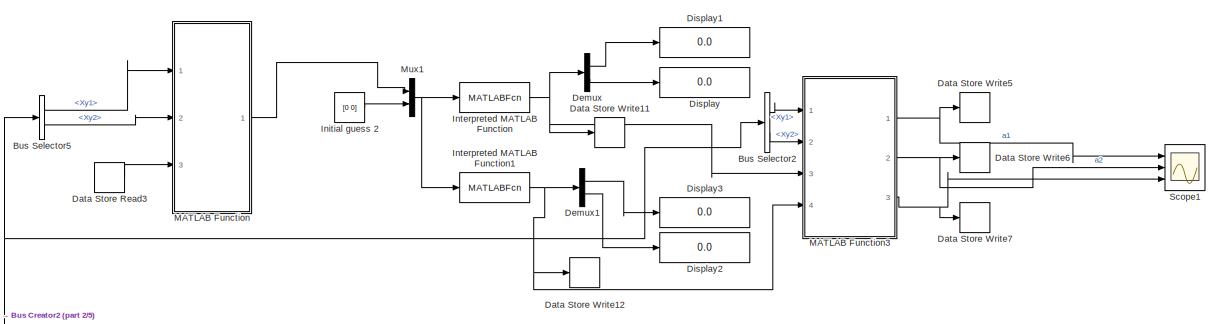
[diagram: root canvas - part 1/5, top center region]
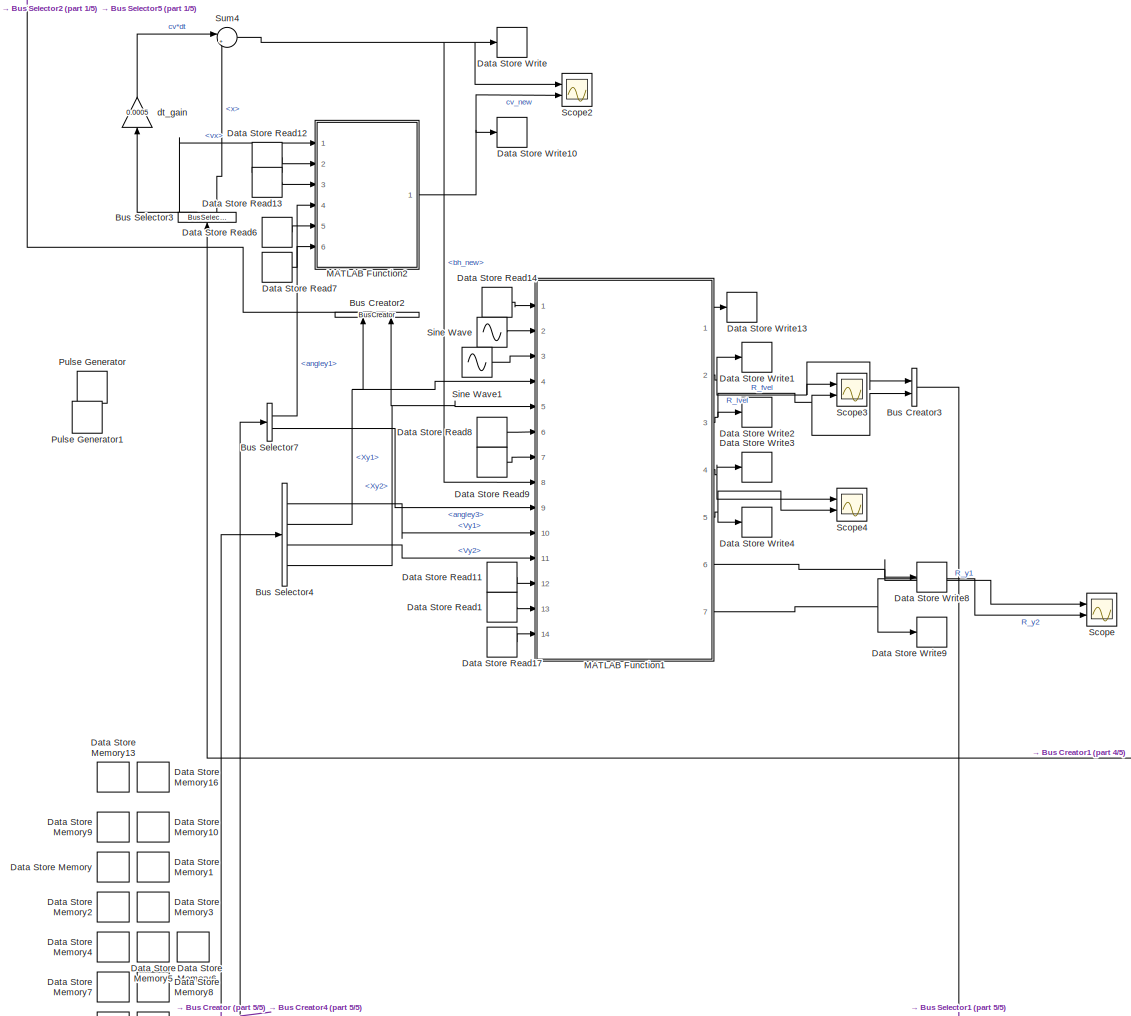
[diagram: root canvas - part 2/5, central region]
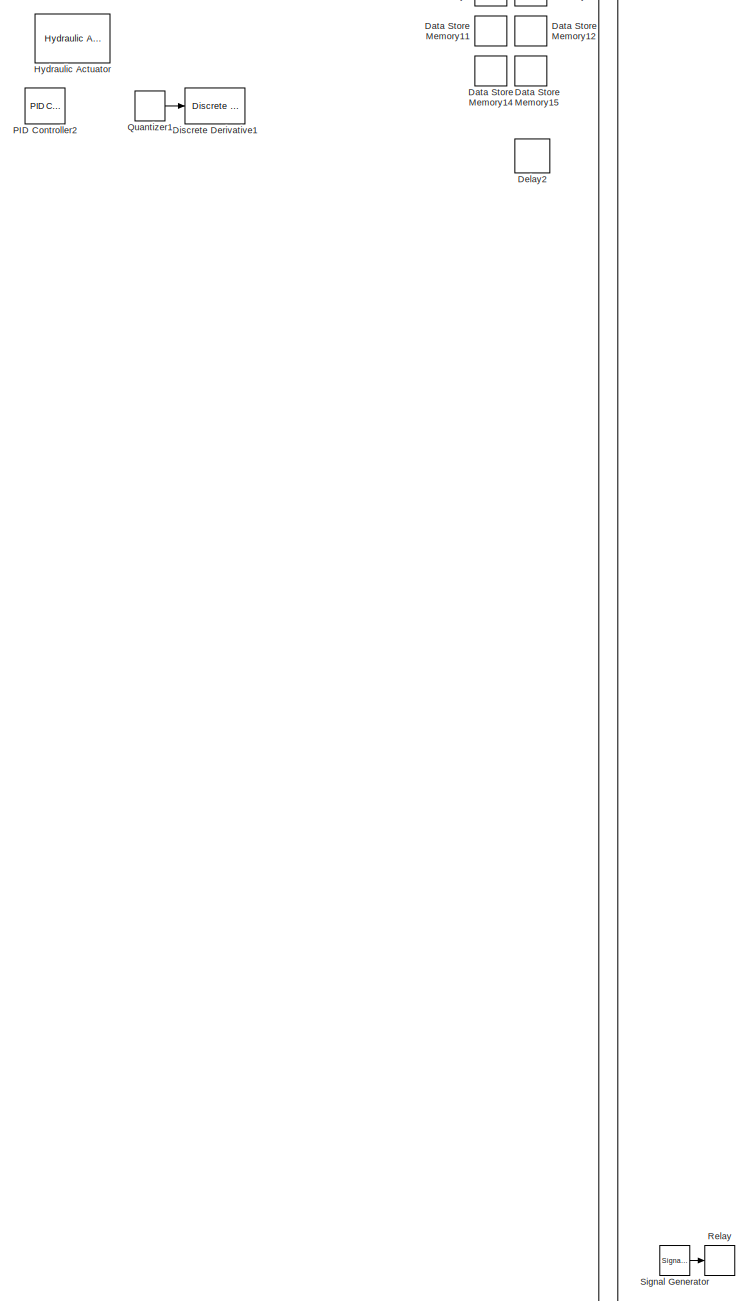
[diagram: root canvas - part 3/5, bottom left region]
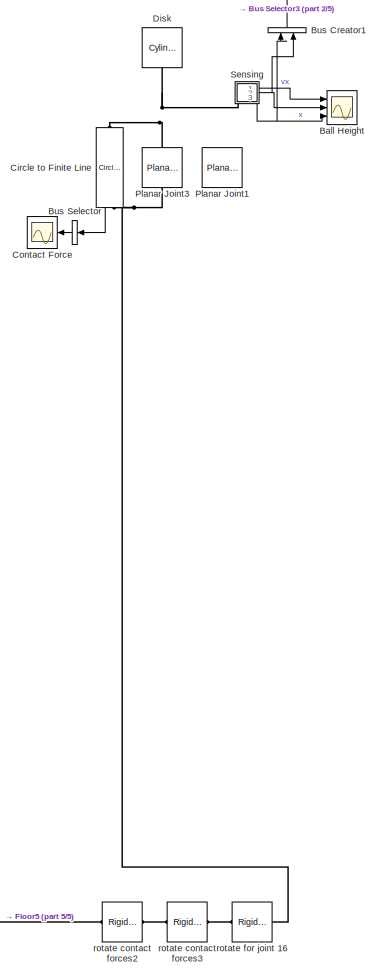
[diagram: root canvas - part 4/5, bottom right region]
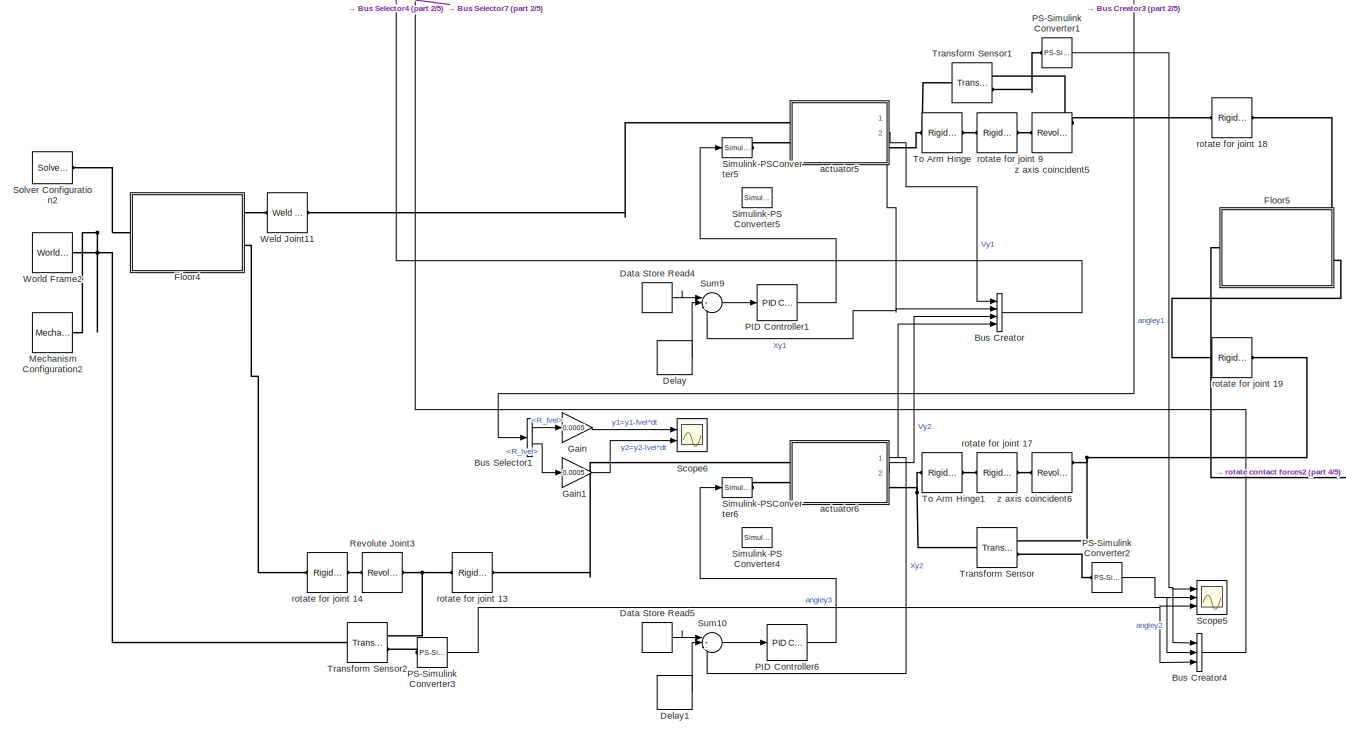
[diagram: root canvas - part 5/5, bottom center region]
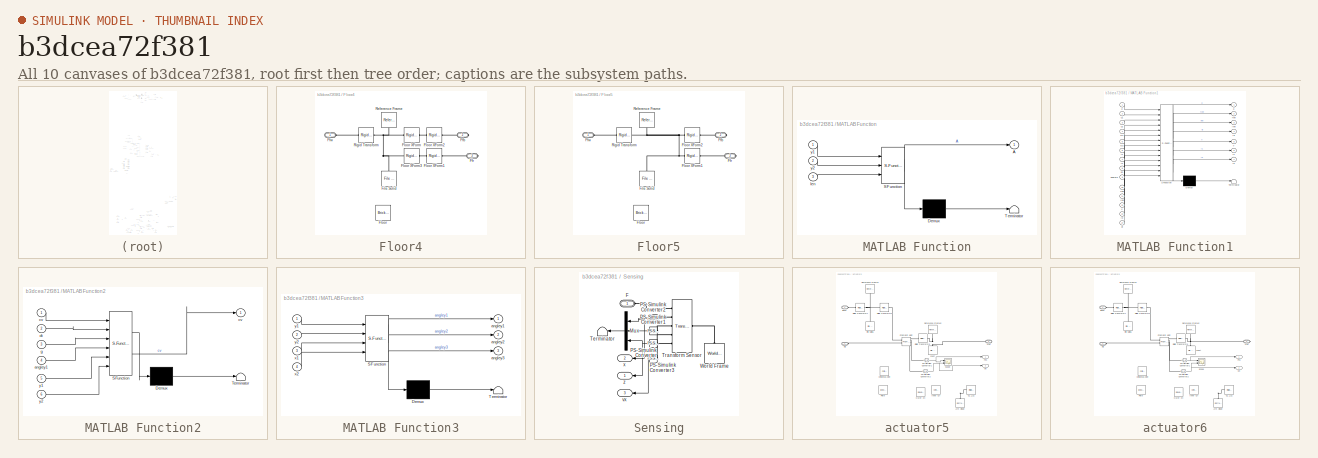
[diagram: thumbnail index - all 10 canvases of the model, root first then tree order]
MODEL slx_b3dcea72f381
KIND model
CONFIG AbsTol = auto
CONFIG EnableMultiTasking = off
CONFIG FixedStep = auto
CONFIG MaxStep = auto
CONFIG MinStep = auto
CONFIG RelTol = 1e-3
CONFIG SampleTimeConstraint = Unconstrained
CONFIG SolverName = VariableStepAuto
CONFIG StartTime = 0.0
CONFIG StopTime = 10.0
BLOCK [Scope] Ball Height
  Floating = off
  NumInputPorts = 3
  Ports = [3]
  ScopeSpecificationString = Simulink.scopes.TimeScopeBlockCfg('CurrentConfiguration', extmgr.ConfigurationSet(extmgr.Configuration('Core','General UI',true,'FigureColor',[0.501960784313725 0.501960784313725 0.501960784313725]),extmgr.Configuration('Core','Source UI',true),extmgr.Configuration('Sources','WiredSimulink',true,'DataLoggingSaveFormat','StructureWithTime','DataLoggingDecimation','1','DataLoggingVariableName','Scop...<+2727ch>
BLOCK [BusCreator] Bus Creator
  DisplayOption = bar
  InheritFromInputs = on
  Inputs = 4
  Ports = [4, 1]
BLOCK [BusCreator] Bus Creator1
  DisplayOption = bar
  InheritFromInputs = on
  Inputs = 2
  NameLocation = right
  Ports = [2, 1]
BLOCK [BusCreator] Bus Creator2
  DisplayOption = bar
  InheritFromInputs = on
  Inputs = 2
  NameLocation = right
  Ports = [2, 1]
BLOCK [BusCreator] Bus Creator3
  DisplayOption = bar
  InheritFromInputs = on
  Inputs = 2
  Ports = [2, 1]
BLOCK [BusCreator] Bus Creator4
  DisplayOption = bar
  InheritFromInputs = on
  Inputs = 3
  Ports = [3, 1]
BLOCK [BusSelector] Bus Selector
  NameLocation = top
  OutputAsBus = on
  OutputSignals = Normal Force
  Ports = [1, 1]
BLOCK [BusSelector] Bus Selector1
  OutputSignals = R_fvel,R_lvel
  Ports = [1, 2]
BLOCK [BusSelector] Bus Selector2
  Commented = on
  OutputSignals = Xy1,Xy2
  Ports = [1, 2]
BLOCK [BusSelector] Bus Selector3
  NameLocation = right
  OutputSignals = vx,x
  Ports = [1, 2]
BLOCK [BusSelector] Bus Selector4
  OutputSignals = Vy1,Xy1,Vy2,Xy2
  Ports = [1, 4]
BLOCK [BusSelector] Bus Selector5
  Commented = on
  OutputSignals = Xy1,Xy2
  Ports = [1, 2]
BLOCK [BusSelector] Bus Selector7
  OutputSignals = angley1,angley3
  Ports = [1, 2]
BLOCK [Reference] Circle to Finite Line  REF=Contact_Forces_Lib/2D/Circle to Finite Line Force
  NameLocation = left
  Ports = [0, 1, 0, 0, 0, 1, 1]
  SourceBlock = Contact_Forces_Lib/2D/Circle to Finite Line Force
  SourceProductName = Simscape Multibody Contact Forces Library
  SourceType = Circle on Finite Line Force
BLOCK [Scope] Contact Force
  Floating = off
  NumInputPorts = 1
  Ports = [1]
  ScopeSpecificationString = Simulink.scopes.TimeScopeBlockCfg('CurrentConfiguration', extmgr.ConfigurationSet(extmgr.Configuration('Core','General UI',true,'FigureColor',[0.501960784313725 0.501960784313725 0.501960784313725]),extmgr.Configuration('Core','Source UI',true),extmgr.Configuration('Sources','WiredSimulink',true,'DataLoggingSaveFormat','StructureWithTime','DataLoggingDecimation','1','DataLoggingDecimateData',true,...<+2643ch>
BLOCK [DataStoreMemory] Data Store Memory
  DataStoreName = bh
  ReadBeforeWriteMsg = warning
  ShowAdditionalParam = off
  WriteAfterReadMsg = warning
  WriteAfterWriteMsg = warning
BLOCK [DataStoreMemory] Data Store Memory1
  DataStoreName = cv
  ReadBeforeWriteMsg = warning
  ShowAdditionalParam = off
  WriteAfterReadMsg = warning
  WriteAfterWriteMsg = warning
BLOCK [DataStoreMemory] Data Store Memory10
  DataStoreName = len
  InitialValue = 2.5
  ReadBeforeWriteMsg = warning
  ShowAdditionalParam = off
  WriteAfterReadMsg = warning
  WriteAfterWriteMsg = warning
BLOCK [DataStoreMemory] Data Store Memory11
  DataStoreName = ld
  ReadBeforeWriteMsg = warning
  ShowAdditionalParam = off
  WriteAfterReadMsg = warning
  WriteAfterWriteMsg = warning
BLOCK [DataStoreMemory] Data Store Memory12
  DataStoreName = v
  ReadBeforeWriteMsg = warning
  ShowAdditionalParam = off
  WriteAfterReadMsg = warning
  WriteAfterWriteMsg = warning
BLOCK [DataStoreMemory] Data Store Memory13
  DataStoreName = g
  InitialValue = 9.8
  ReadBeforeWriteMsg = warning
  ShowAdditionalParam = off
  WriteAfterReadMsg = warning
  WriteAfterWriteMsg = warning
BLOCK [DataStoreMemory] Data Store Memory14
  DataStoreName = x1
  InitialValue = [0 0]
  ReadBeforeWriteMsg = warning
  ShowAdditionalParam = off
  WriteAfterReadMsg = warning
  WriteAfterWriteMsg = warning
BLOCK [DataStoreMemory] Data Store Memory15
  DataStoreName = x2
  InitialValue = [0 0]
  ReadBeforeWriteMsg = warning
  ShowAdditionalParam = off
  WriteAfterReadMsg = warning
  WriteAfterWriteMsg = warning
BLOCK [DataStoreMemory] Data Store Memory16
  DataStoreName = a
  ReadBeforeWriteMsg = warning
  ShowAdditionalParam = off
  WriteAfterReadMsg = warning
  WriteAfterWriteMsg = warning
BLOCK [DataStoreMemory] Data Store Memory2
  DataStoreName = y1
  ReadBeforeWriteMsg = warning
  ShowAdditionalParam = off
  WriteAfterReadMsg = warning
  WriteAfterWriteMsg = warning
BLOCK [DataStoreMemory] Data Store Memory3
  DataStoreName = y2
  ReadBeforeWriteMsg = warning
  ShowAdditionalParam = off
  WriteAfterReadMsg = warning
  WriteAfterWriteMsg = warning
BLOCK [DataStoreMemory] Data Store Memory4
  DataStoreName = angley1
  ReadBeforeWriteMsg = warning
  ShowAdditionalParam = off
  WriteAfterReadMsg = warning
  WriteAfterWriteMsg = warning
BLOCK [DataStoreMemory] Data Store Memory5
  DataStoreName = angley2
  ReadBeforeWriteMsg = warning
  ShowAdditionalParam = off
  WriteAfterReadMsg = warning
  WriteAfterWriteMsg = warning
BLOCK [DataStoreMemory] Data Store Memory6
  DataStoreName = angley3
  ReadBeforeWriteMsg = warning
  ShowAdditionalParam = off
  WriteAfterReadMsg = warning
  WriteAfterWriteMsg = warning
BLOCK [DataStoreMemory] Data Store Memory7
  DataStoreName = fvel
  ReadBeforeWriteMsg = warning
  ShowAdditionalParam = off
  WriteAfterReadMsg = warning
  WriteAfterWriteMsg = warning
BLOCK [DataStoreMemory] Data Store Memory8
  DataStoreName = lvel
  ReadBeforeWriteMsg = warning
  ShowAdditionalParam = off
  WriteAfterReadMsg = warning
  WriteAfterWriteMsg = warning
BLOCK [DataStoreMemory] Data Store Memory9
  DataStoreName = dt
  InitialValue = 0.0005
  ReadBeforeWriteMsg = warning
  ShowAdditionalParam = off
  WriteAfterReadMsg = warning
  WriteAfterWriteMsg = warning
BLOCK [DataStoreRead] Data Store Read1
  DataStoreName = ld
  IndexOptions = Index vector (dialog)
  Indices = 1
  OutputSizes = 1
  Ports = [0, 1]
BLOCK [DataStoreRead] Data Store Read11
  DataStoreName = v
  IndexOptions = Index vector (dialog)
  Indices = 1
  OutputSizes = 1
  Ports = [0, 1]
BLOCK [DataStoreRead] Data Store Read12
  DataStoreName = dt
  IndexOptions = Index vector (dialog)
  Indices = 1
  OutputSizes = 1
  Ports = [0, 1]
BLOCK [DataStoreRead] Data Store Read13
  DataStoreName = g
  IndexOptions = Index vector (dialog)
  Indices = 1
  OutputSizes = 1
  Ports = [0, 1]
BLOCK [DataStoreRead] Data Store Read14
  DataStoreName = a
  IndexOptions = Index vector (dialog)
  Indices = 1
  OutputSizes = 1
  Ports = [0, 1]
BLOCK [DataStoreRead] Data Store Read17
  DataStoreName = dt
  IndexOptions = Index vector (dialog)
  Indices = 1
  OutputSizes = 1
  Ports = [0, 1]
BLOCK [DataStoreRead] Data Store Read3
  Commented = on
  DataStoreName = len
  IndexOptions = Index vector (dialog)
  Indices = 1
  OutputSizes = 1
  Ports = [0, 1]
BLOCK [DataStoreRead] Data Store Read4
  DataStoreName = y1
  IndexOptions = Index vector (dialog)
  Indices = 1
  OutputSizes = 1
  Ports = [0, 1]
BLOCK [DataStoreRead] Data Store Read5
  DataStoreName = y2
  IndexOptions = Index vector (dialog)
  Indices = 1
  OutputSizes = 1
  Ports = [0, 1]
BLOCK [DataStoreRead] Data Store Read6
  DataStoreName = y1
  IndexOptions = Index vector (dialog)
  Indices = 1
  OutputSizes = 1
  Ports = [0, 1]
BLOCK [DataStoreRead] Data Store Read7
  DataStoreName = y2
  IndexOptions = Index vector (dialog)
  Indices = 1
  OutputSizes = 1
  Ports = [0, 1]
BLOCK [DataStoreRead] Data Store Read8
  DataStoreName = y1
  IndexOptions = Index vector (dialog)
  Indices = 1
  OutputSizes = 1
  Ports = [0, 1]
BLOCK [DataStoreRead] Data Store Read9
  DataStoreName = y2
  IndexOptions = Index vector (dialog)
  Indices = 1
  OutputSizes = 1
  Ports = [0, 1]
BLOCK [DataStoreWrite] Data Store Write
  DataStoreName = bh
  IndexOptions = Index vector (dialog)
  Indices = 1
  OutputSizes = 1
  Ports = [1]
BLOCK [DataStoreWrite] Data Store Write1
  DataStoreName = fvel
  IndexOptions = Index vector (dialog)
  Indices = 1
  OutputSizes = 1
  Ports = [1]
BLOCK [DataStoreWrite] Data Store Write10
  DataStoreName = cv
  IndexOptions = Index vector (dialog)
  Indices = 1
  OutputSizes = 1
  Ports = [1]
BLOCK [DataStoreWrite] Data Store Write11
  Commented = on
  DataStoreName = x1
  IndexOptions = Index vector (dialog)
  Indices = 1
  OutputSizes = 1
  Ports = [1]
BLOCK [DataStoreWrite] Data Store Write12
  Commented = on
  DataStoreName = x2
  IndexOptions = Index vector (dialog)
  Indices = 1
  OutputSizes = 1
  Ports = [1]
BLOCK [DataStoreWrite] Data Store Write13
  DataStoreName = a
  IndexOptions = Index vector (dialog)
  Indices = 1
  OutputSizes = 1
  Ports = [1]
BLOCK [DataStoreWrite] Data Store Write2
  DataStoreName = lvel
  IndexOptions = Index vector (dialog)
  Indices = 1
  OutputSizes = 1
  Ports = [1]
BLOCK [DataStoreWrite] Data Store Write3
  DataStoreName = ld
  IndexOptions = Index vector (dialog)
  Indices = 1
  OutputSizes = 1
  Ports = [1]
BLOCK [DataStoreWrite] Data Store Write4
  DataStoreName = v
  IndexOptions = Index vector (dialog)
  Indices = 1
  OutputSizes = 1
  Ports = [1]
BLOCK [DataStoreWrite] Data Store Write5
  Commented = on
  DataStoreName = angley1
  IndexOptions = Index vector (dialog)
  Indices = 1
  OutputSizes = 1
  Ports = [1]
BLOCK [DataStoreWrite] Data Store Write6
  Commented = on
  DataStoreName = angley2
  IndexOptions = Index vector (dialog)
  Indices = 1
  OutputSizes = 1
  Ports = [1]
BLOCK [DataStoreWrite] Data Store Write7
  Commented = on
  DataStoreName = angley3
  IndexOptions = Index vector (dialog)
  Indices = 1
  OutputSizes = 1
  Ports = [1]
BLOCK [DataStoreWrite] Data Store Write8
  DataStoreName = y1
  IndexOptions = Index vector (dialog)
  Indices = 1
  OutputSizes = 1
  Ports = [1]
BLOCK [DataStoreWrite] Data Store Write9
  DataStoreName = y2
  IndexOptions = Index vector (dialog)
  Indices = 1
  OutputSizes = 1
  Ports = [1]
BLOCK [Delay] Delay
  DelayLength = 1
  InitialCondition = 0
  InputPortMap = u0
  Ports = [1, 1]
BLOCK [Delay] Delay1
  DelayLength = 1
  InitialCondition = 0
  InputPortMap = u0
  Ports = [1, 1]
BLOCK [Delay] Delay2
  DelayLength = 1
  InitialCondition = 0
  InputPortMap = u0
  Ports = [1, 1]
BLOCK [Demux] Demux
  Commented = on
  Outputs = 2
  Ports = [1, 2]
BLOCK [Demux] Demux1
  Commented = on
  Outputs = 2
  Ports = [1, 2]
BLOCK [Reference] Discrete Derivative1  REF=simulink/Discrete/Discrete Derivative
  Commented = on
  Ports = [1, 1]
  SourceBlock = simulink/Discrete/Discrete Derivative
  SourceProductBaseCode = SL
  SourceType = Discrete Derivative
BLOCK [Reference] Disk  REF=Parts_Lib/Cylinder
  NameLocation = right
  Ports = [0, 0, 0, 0, 0, 1]
  SourceBlock = Parts_Lib/Cylinder
  SourceType = Solid Cylinder with Markings
BLOCK [Display] Display
  Commented = on
  Decimation = 1
  Ports = [1]
BLOCK [Display] Display1
  Commented = on
  Decimation = 1
  Ports = [1]
BLOCK [Display] Display2
  Commented = on
  Decimation = 1
  Ports = [1]
BLOCK [Display] Display3
  Commented = on
  Decimation = 1
  Ports = [1]
BLOCK [SubSystem] Floor4
  Ports = [0, 0, 0, 0, 0, 1, 2]
  RequestExecContextInheritance = off
BLOCK [PMIOPort] Floor4/Ffb
  NameLocation = top
  Port = 2
  Side = Right
BLOCK [PMIOPort] Floor4/Ffr
  NameLocation = top
  Port = 3
  Side = Right
BLOCK [PMIOPort] Floor4/Ffw
  NameLocation = top
  Side = Left
BLOCK [Reference] Floor4/File Solid  REF=sm_lib/Body Elements/File Solid
  NameLocation = right
  Ports = [0, 0, 0, 0, 0, 0, 1]
  SourceBlock = sm_lib/Body Elements/File Solid
  SourceProductBaseCode = MS
  SourceType = File Solid
BLOCK [Reference] Floor4/Floor  REF=sm_lib/Body Elements/Brick Solid
  Commented = on
  NameLocation = right
  Ports = [0, 0, 0, 0, 0, 0, 1]
  SourceBlock = sm_lib/Body Elements/Brick Solid
  SourceProductBaseCode = MS
  SourceType = Brick Solid
BLOCK [Reference] Floor4/Floor XForm  REF=sm_lib/Frames and
Transforms/Rigid
Transform
  NameLocation = top
  Ports = [0, 0, 0, 0, 0, 1, 1]
  SourceBlock = sm_lib/Frames and\nTransforms/Rigid\nTransform
  SourceProductBaseCode = MS
  SourceType = Rigid\nTransform
BLOCK [Reference] Floor4/Floor XForm1  REF=sm_lib/Frames and
Transforms/Rigid
Transform
  NameLocation = top
  Ports = [0, 0, 0, 0, 0, 1, 1]
  SourceBlock = sm_lib/Frames and\nTransforms/Rigid\nTransform
  SourceProductBaseCode = MS
  SourceType = Rigid\nTransform
BLOCK [Reference] Floor4/Floor XForm2  REF=sm_lib/Frames and
Transforms/Rigid
Transform
  NameLocation = top
  Ports = [0, 0, 0, 0, 0, 1, 1]
  SourceBlock = sm_lib/Frames and\nTransforms/Rigid\nTransform
  SourceProductBaseCode = MS
  SourceType = Rigid\nTransform
BLOCK [Reference] Floor4/Floor XForm3  REF=sm_lib/Frames and
Transforms/Rigid
Transform
  NameLocation = top
  Ports = [0, 0, 0, 0, 0, 1, 1]
  SourceBlock = sm_lib/Frames and\nTransforms/Rigid\nTransform
  SourceProductBaseCode = MS
  SourceType = Rigid\nTransform
BLOCK [Reference] Floor4/Reference Frame  REF=sm_lib/Frames and
Transforms/Reference
Frame
  NameLocation = left
  Ports = [0, 0, 0, 0, 0, 0, 1]
  SourceBlock = sm_lib/Frames and\nTransforms/Reference\nFrame
  SourceProductBaseCode = MS
  SourceType = Reference\nFrame
BLOCK [Reference] Floor4/Rigid Transform  REF=sm_lib/Frames and
Transforms/Rigid
Transform
  NameLocation = top
  Ports = [0, 0, 0, 0, 0, 1, 1]
  SourceBlock = sm_lib/Frames and\nTransforms/Rigid\nTransform
  SourceProductBaseCode = MS
  SourceType = Rigid\nTransform
BLOCK [SubSystem] Floor5
  Ports = [0, 0, 0, 0, 0, 1, 2]
  RequestExecContextInheritance = off
BLOCK [PMIOPort] Floor5/Ffb
  NameLocation = top
  Port = 2
  Side = Right
BLOCK [PMIOPort] Floor5/Ffr
  NameLocation = top
  Port = 3
  Side = Right
BLOCK [PMIOPort] Floor5/Ffw
  NameLocation = top
  Side = Left
BLOCK [Reference] Floor5/File Solid  REF=sm_lib/Body Elements/File Solid
  NameLocation = right
  Ports = [0, 0, 0, 0, 0, 0, 1]
  SourceBlock = sm_lib/Body Elements/File Solid
  SourceProductBaseCode = MS
  SourceType = File Solid
BLOCK [Reference] Floor5/Floor  REF=sm_lib/Body Elements/Brick Solid
  Commented = on
  NameLocation = right
  Ports = [0, 0, 0, 0, 0, 0, 1]
  SourceBlock = sm_lib/Body Elements/Brick Solid
  SourceProductBaseCode = MS
  SourceType = Brick Solid
BLOCK [Reference] Floor5/Floor XForm1  REF=sm_lib/Frames and
Transforms/Rigid
Transform
  NameLocation = top
  Ports = [0, 0, 0, 0, 0, 1, 1]
  SourceBlock = sm_lib/Frames and\nTransforms/Rigid\nTransform
  SourceProductBaseCode = MS
  SourceType = Rigid\nTransform
BLOCK [Reference] Floor5/Floor XForm2  REF=sm_lib/Frames and
Transforms/Rigid
Transform
  NameLocation = top
  Ports = [0, 0, 0, 0, 0, 1, 1]
  SourceBlock = sm_lib/Frames and\nTransforms/Rigid\nTransform
  SourceProductBaseCode = MS
  SourceType = Rigid\nTransform
BLOCK [Reference] Floor5/Reference Frame  REF=sm_lib/Frames and
Transforms/Reference
Frame
  NameLocation = left
  Ports = [0, 0, 0, 0, 0, 0, 1]
  SourceBlock = sm_lib/Frames and\nTransforms/Reference\nFrame
  SourceProductBaseCode = MS
  SourceType = Reference\nFrame
BLOCK [Reference] Floor5/Rigid Transform  REF=sm_lib/Frames and
Transforms/Rigid
Transform
  NameLocation = top
  Ports = [0, 0, 0, 0, 0, 1, 1]
  SourceBlock = sm_lib/Frames and\nTransforms/Rigid\nTransform
  SourceProductBaseCode = MS
  SourceType = Rigid\nTransform
BLOCK [Gain] Gain
  Gain = 0.0005
BLOCK [Gain] Gain1
  Gain = 0.0005
BLOCK [Reference] Hydraulic Actuator  REF=Multibody_Multiphysics_Lib/Hydraulic/Hydraulic Actuator
  Commented = on
  Ports = [0, 0, 0, 0, 0, 2, 2]
  SourceBlock = Multibody_Multiphysics_Lib/Hydraulic/Hydraulic Actuator
  SourceProductName = Simscape Multibody Multiphysics Library
  SourceType = Double-Acting Hydraulic Cylinder, Kinematic Inputs
BLOCK [Constant] Initial guess 2
  Commented = on
  Value = [0 0]
BLOCK [MATLABFcn] Interpreted MATLAB Function
  Commented = on
  MATLABFcn = fsolve(@(x) paramfunJS(x, u(1),u(2),u(3)), [u(4:5)])
  OutputDimensions = 2
  Ports = [1, 1]
BLOCK [MATLABFcn] Interpreted MATLAB Function1
  Commented = on
  MATLABFcn = fsolve(@(x) paramfunJS2(x, u(1),u(2),u(3)), [u(4:5)])
  OutputDimensions = 2
  Ports = [1, 1]
BLOCK [SubSystem] MATLAB Function
  Commented = on
  ErrorFcn = Stateflow.Translate.translate
  PermitHierarchicalResolution = ExplicitOnly
  Ports = [3, 1]
  RequestExecContextInheritance = off
  SFBlockType = MATLAB Function
  TreatAsAtomicUnit = on
BLOCK [Demux] MATLAB Function/ Demux 
  Outputs = 1
  Ports = [1, 1]
BLOCK [S-Function] MATLAB Function/ SFunction 
  EnableBusSupport = on
  FunctionName = sf_sfun
  PortCounts = [3 2]
  Ports = [3, 2]
  SFcnIsStateOwnerBlock = off
  SFunctionDeploymentMode = off
  Tag = Stateflow S-Function 2
BLOCK [Terminator] MATLAB Function/ Terminator 
BLOCK [Outport] MATLAB Function/A
BLOCK [Inport] MATLAB Function/len
  Port = 3
BLOCK [Inport] MATLAB Function/y1
BLOCK [Inport] MATLAB Function/y2
  Port = 2
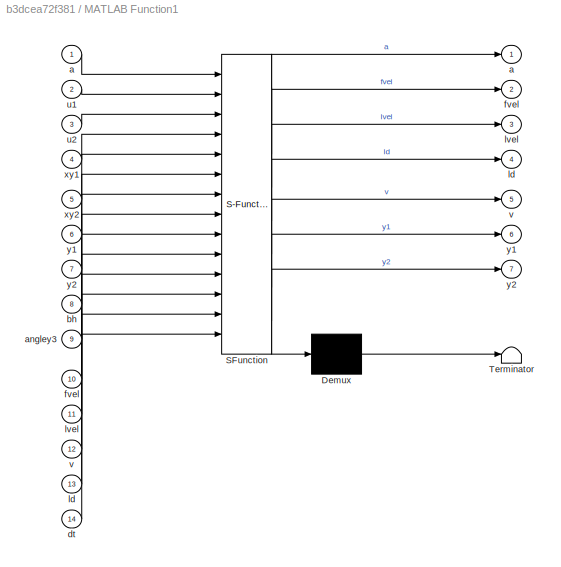
BLOCK [SubSystem] MATLAB Function1
  ErrorFcn = Stateflow.Translate.translate
  PermitHierarchicalResolution = ExplicitOnly
  Ports = [14, 7]
  RequestExecContextInheritance = off
  SFBlockType = MATLAB Function
  TreatAsAtomicUnit = on
BLOCK [Demux] MATLAB Function1/ Demux 
  Outputs = 1
  Ports = [1, 1]
BLOCK [S-Function] MATLAB Function1/ SFunction 
  EnableBusSupport = on
  FunctionName = sf_sfun
  PortCounts = [14 8]
  Ports = [14, 8]
  SFcnIsStateOwnerBlock = off
  SFunctionDeploymentMode = off
  Tag = Stateflow S-Function 1
BLOCK [Terminator] MATLAB Function1/ Terminator 
BLOCK [Outport] MATLAB Function1/a
BLOCK [Inport] MATLAB Function1/a 
BLOCK [Inport] MATLAB Function1/angley3
  Port = 9
BLOCK [Inport] MATLAB Function1/bh
  Port = 8
BLOCK [Inport] MATLAB Function1/dt
  Port = 14
BLOCK [Outport] MATLAB Function1/fvel
  Port = 2
BLOCK [Inport] MATLAB Function1/fvel 
  Port = 10
BLOCK [Outport] MATLAB Function1/ld
  Port = 4
BLOCK [Inport] MATLAB Function1/ld 
  Port = 13
BLOCK [Outport] MATLAB Function1/lvel
  Port = 3
BLOCK [Inport] MATLAB Function1/lvel 
  Port = 11
BLOCK [Inport] MATLAB Function1/u1
  Port = 2
BLOCK [Inport] MATLAB Function1/u2
  Port = 3
BLOCK [Outport] MATLAB Function1/v
  Port = 5
BLOCK [Inport] MATLAB Function1/v 
  Port = 12
BLOCK [Inport] MATLAB Function1/xy1
  Port = 4
BLOCK [Inport] MATLAB Function1/xy2
  Port = 5
BLOCK [Outport] MATLAB Function1/y1
  Port = 6
BLOCK [Inport] MATLAB Function1/y1 
  Port = 6
BLOCK [Outport] MATLAB Function1/y2
  Port = 7
BLOCK [Inport] MATLAB Function1/y2 
  Port = 7
BLOCK [SubSystem] MATLAB Function2
  ErrorFcn = Stateflow.Translate.translate
  PermitHierarchicalResolution = ExplicitOnly
  Ports = [6, 1]
  RequestExecContextInheritance = off
  SFBlockType = MATLAB Function
  TreatAsAtomicUnit = on
BLOCK [Demux] MATLAB Function2/ Demux 
  Outputs = 1
  Ports = [1, 1]
BLOCK [S-Function] MATLAB Function2/ SFunction 
  EnableBusSupport = on
  FunctionName = sf_sfun
  PortCounts = [6 2]
  Ports = [6, 2]
  SFcnIsStateOwnerBlock = off
  SFunctionDeploymentMode = off
  Tag = Stateflow S-Function 3
BLOCK [Terminator] MATLAB Function2/ Terminator 
BLOCK [Inport] MATLAB Function2/angley1
  Port = 4
BLOCK [Outport] MATLAB Function2/cv
BLOCK [Inport] MATLAB Function2/cv 
BLOCK [Inport] MATLAB Function2/dt
  Port = 2
BLOCK [Inport] MATLAB Function2/g
  Port = 3
BLOCK [Inport] MATLAB Function2/y1
  Port = 5
BLOCK [Inport] MATLAB Function2/y2
  Port = 6
BLOCK [SubSystem] MATLAB Function3
  Commented = on
  ErrorFcn = Stateflow.Translate.translate
  PermitHierarchicalResolution = ExplicitOnly
  Ports = [4, 3]
  RequestExecContextInheritance = off
  SFBlockType = MATLAB Function
  TreatAsAtomicUnit = on
BLOCK [Demux] MATLAB Function3/ Demux 
  Outputs = 1
  Ports = [1, 1]
BLOCK [S-Function] MATLAB Function3/ SFunction 
  EnableBusSupport = on
  FunctionName = sf_sfun
  PortCounts = [4 4]
  Ports = [4, 4]
  SFcnIsStateOwnerBlock = off
  SFunctionDeploymentMode = off
  Tag = Stateflow S-Function 4
BLOCK [Terminator] MATLAB Function3/ Terminator 
BLOCK [Outport] MATLAB Function3/angley1
BLOCK [Outport] MATLAB Function3/angley2
  Port = 2
BLOCK [Outport] MATLAB Function3/angley3
  Port = 3
BLOCK [Inport] MATLAB Function3/x1
  Port = 3
BLOCK [Inport] MATLAB Function3/x2
  Port = 4
BLOCK [Inport] MATLAB Function3/y1
BLOCK [Inport] MATLAB Function3/y2
  Port = 2
BLOCK [Reference] Mechanism Configuration2  REF=sm_lib/Utilities/Mechanism
Configuration
  Ports = [0, 0, 0, 0, 0, 0, 1]
  SourceBlock = sm_lib/Utilities/Mechanism\nConfiguration
  SourceProductBaseCode = MS
  SourceType = Mechanism\nConfiguration
BLOCK [Mux] Mux1
  Commented = on
  DisplayOption = bar
  Inputs = 2
  Ports = [2, 1]
BLOCK [Reference] PID Controller1  REF=pid_lib/PID Controller
  Ports = [1, 1]
  SourceBlock = pid_lib/PID Controller
  SourceProductBaseCode = SL
  SourceType = PID 1dof
BLOCK [Reference] PID Controller2  REF=pid_lib/PID Controller
  Commented = on
  Ports = [1, 1]
  SourceBlock = pid_lib/PID Controller
  SourceProductBaseCode = SL
  SourceType = PID 1dof
BLOCK [Reference] PID Controller6  REF=pid_lib/PID Controller
  Ports = [1, 1]
  SourceBlock = pid_lib/PID Controller
  SourceProductBaseCode = SL
  SourceType = PID 1dof
BLOCK [Reference] PS-Simulink Converter1  REF=nesl_utility/PS-Simulink
Converter
  Ports = [0, 1, 0, 0, 0, 1]
  SourceBlock = nesl_utility/PS-Simulink\nConverter
  SourceProductBaseCode = SS
  SourceType = PS-Simulink\nConverter
BLOCK [Reference] PS-Simulink Converter2  REF=nesl_utility/PS-Simulink
Converter
  Ports = [0, 1, 0, 0, 0, 1]
  SourceBlock = nesl_utility/PS-Simulink\nConverter
  SourceProductBaseCode = SS
  SourceType = PS-Simulink\nConverter
BLOCK [Reference] PS-Simulink Converter3  REF=nesl_utility/PS-Simulink
Converter
  Ports = [0, 1, 0, 0, 0, 1]
  SourceBlock = nesl_utility/PS-Simulink\nConverter
  SourceProductBaseCode = SS
  SourceType = PS-Simulink\nConverter
BLOCK [Reference] Planar Joint1  REF=sm_lib/Joints/Planar Joint
  Commented = on
  NameLocation = right
  Ports = [0, 0, 0, 0, 0, 1, 1]
  SourceBlock = sm_lib/Joints/Planar Joint
  SourceProductBaseCode = MS
  SourceType = Planar Joint
BLOCK [Reference] Planar Joint3  REF=sm_lib/Joints/Planar Joint
  NameLocation = right
  Ports = [0, 0, 0, 0, 0, 1, 1]
  SourceBlock = sm_lib/Joints/Planar Joint
  SourceProductBaseCode = MS
  SourceType = Planar Joint
BLOCK [DiscretePulseGenerator] Pulse Generator
  Amplitude = 3
  Period = 10
  Ports = [0, 1]
  PulseType = Time based
  PulseWidth = 5
BLOCK [DiscretePulseGenerator] Pulse Generator1
  Amplitude = -1
  Period = 10
  Ports = [0, 1]
  PulseType = Time based
  PulseWidth = 5
BLOCK [Quantizer] Quantizer1
  Commented = on
  QuantizationInterval = 1e-6
BLOCK [Relay] Relay
BLOCK [Reference] Revolute Joint3  REF=sm_lib/Joints/Revolute Joint
  Ports = [0, 0, 0, 0, 0, 1, 1]
  SourceBlock = sm_lib/Joints/Revolute Joint
  SourceProductBaseCode = MS
  SourceType = Revolute Joint
BLOCK [Scope] Scope
  Floating = off
  NumInputPorts = 2
  Ports = [2]
  ScopeSpecificationString = Simulink.scopes.TimeScopeBlockCfg('CurrentConfiguration', extmgr.ConfigurationSet(extmgr.Configuration('Core','General UI',true),extmgr.Configuration('Core','Source UI',true),extmgr.Configuration('Sources','WiredSimulink',true,'DataLoggingVariableName','ScopeData1'),extmgr.Configuration('Visuals','Time Domain',true,'SerializedDisplays',{struct('MinYLimReal','-1.00000','MaxYLimReal','1.00000','YLab...<+1445ch>
BLOCK [Scope] Scope1
  Commented = on
  Floating = off
  NumInputPorts = 3
  Ports = [3]
  ScopeSpecificationString = Simulink.scopes.TimeScopeBlockCfg('CurrentConfiguration', extmgr.ConfigurationSet(extmgr.Configuration('Core','General UI',true),extmgr.Configuration('Core','Source UI',true),extmgr.Configuration('Sources','WiredSimulink',true,'DataLoggingVariableName','ScopeData2'),extmgr.Configuration('Visuals','Time Domain',true,'SerializedDisplays',{struct('MinYLimReal','-9.21415','MaxYLimReal','4.51293','YLab...<+1432ch>
BLOCK [Scope] Scope2
  Floating = off
  NumInputPorts = 2
  Ports = [2]
  ScopeSpecificationString = Simulink.scopes.TimeScopeBlockCfg('CurrentConfiguration', extmgr.ConfigurationSet(extmgr.Configuration('Core','General UI',true),extmgr.Configuration('Core','Source UI',true),extmgr.Configuration('Sources','WiredSimulink',true,'DataLoggingVariableName','ScopeData3'),extmgr.Configuration('Visuals','Time Domain',true,'SerializedDisplays',{struct('MinYLimReal','-0.0000011','MaxYLimReal','0.0000086','...<+1421ch>
BLOCK [Scope] Scope3
  Floating = off
  NumInputPorts = 2
  Ports = [2]
  ScopeSpecificationString = Simulink.scopes.TimeScopeBlockCfg('CurrentConfiguration', extmgr.ConfigurationSet(extmgr.Configuration('Core','General UI',true),extmgr.Configuration('Core','Source UI',true),extmgr.Configuration('Sources','WiredSimulink',true,'DataLoggingVariableName','ScopeData4'),extmgr.Configuration('Visuals','Time Domain',true,'SerializedDisplays',{struct('MinYLimReal','0.00866','MaxYLimReal','0.01352','YLabe...<+1446ch>
BLOCK [Scope] Scope4
  Floating = off
  NumInputPorts = 2
  Ports = [2]
  ScopeSpecificationString = Simulink.scopes.TimeScopeBlockCfg('CurrentConfiguration', extmgr.ConfigurationSet(extmgr.Configuration('Core','General UI',true),extmgr.Configuration('Core','Source UI',true),extmgr.Configuration('Sources','WiredSimulink',true,'DataLoggingVariableName','ScopeData5'),extmgr.Configuration('Visuals','Time Domain',true,'SerializedDisplays',{struct('MinYLimReal','-0.0003','MaxYLimReal','0.00005','YLabe...<+1495ch>
BLOCK [Scope] Scope5
  Floating = off
  NumInputPorts = 3
  Ports = [3]
  ScopeSpecificationString = Simulink.scopes.TimeScopeBlockCfg('CurrentConfiguration', extmgr.ConfigurationSet(extmgr.Configuration('Core','General UI',true),extmgr.Configuration('Core','Source UI',true),extmgr.Configuration('Sources','WiredSimulink',true,'DataLoggingVariableName','ScopeData6'),extmgr.Configuration('Visuals','Time Domain',true,'SerializedDisplays',{struct('MinYLimReal','1.5707963267948959','MaxYLimReal','1.57...<+1547ch>
BLOCK [Scope] Scope6
  Floating = off
  NumInputPorts = 2
  Ports = [2]
  ScopeSpecificationString = Simulink.scopes.TimeScopeBlockCfg('CurrentConfiguration', extmgr.ConfigurationSet(extmgr.Configuration('Core','General UI',true),extmgr.Configuration('Core','Source UI',true),extmgr.Configuration('Sources','WiredSimulink',true,'DataLoggingVariableName','ScopeData7'),extmgr.Configuration('Visuals','Time Domain',true,'SerializedDisplays',{struct('MinYLimReal','-0.0000008','MaxYLimReal','0.0000073','...<+1404ch>
BLOCK [SubSystem] Sensing
  PortSchema = {"entries":[{"content":{"sides":[{"content":{"connectorIds":["LConn1"]},"type":"ConnectorPlacement.EquallySpacedRectSide","uuid":"93b13ba7-23a9-4c5a-9fec-0feef4182ac7"},{"content":{"connectorIds":["Out1","Out2"],"side":"RIGHT"},"type":"ConnectorPlacement.EquallySpacedRectSide","uuid":"b1b2a2c0-26e3-4622-ac18-4e8f5a1759f9"},{"content":{"connectorIds":[],"side":"TOP"},"type":"ConnectorPlacement.Equa...<+400ch>
  Ports = [0, 3, 0, 0, 0, 1]
  RequestExecContextInheritance = off
BLOCK [PMIOPort] Sensing/F
  NameLocation = top
  Side = Left
BLOCK [Mux] Sensing/Mux
  DisplayOption = bar
  Inputs = 3
  Ports = [3, 1]
BLOCK [Reference] Sensing/PS-Simulink Converter  REF=nesl_utility/PS-Simulink
Converter
  NameLocation = top
  Ports = [0, 1, 0, 0, 0, 1]
  SourceBlock = nesl_utility/PS-Simulink\nConverter
  SourceProductBaseCode = PW,SS
  SourceType = PS-Simulink\nConverter
BLOCK [Reference] Sensing/PS-Simulink Converter1  REF=nesl_utility/PS-Simulink
Converter
  NameLocation = top
  Ports = [0, 1, 0, 0, 0, 1]
  SourceBlock = nesl_utility/PS-Simulink\nConverter
  SourceProductBaseCode = PW,SS
  SourceType = PS-Simulink\nConverter
BLOCK [Reference] Sensing/PS-Simulink Converter2  REF=nesl_utility/PS-Simulink
Converter
  NameLocation = top
  Ports = [0, 1, 0, 0, 0, 1]
  SourceBlock = nesl_utility/PS-Simulink\nConverter
  SourceProductBaseCode = PW,SS
  SourceType = PS-Simulink\nConverter
BLOCK [Reference] Sensing/PS-Simulink Converter3  REF=nesl_utility/PS-Simulink
Converter
  NameLocation = top
  Ports = [0, 1, 0, 0, 0, 1]
  SourceBlock = nesl_utility/PS-Simulink\nConverter
  SourceProductBaseCode = PW,SS
  SourceType = PS-Simulink\nConverter
BLOCK [Terminator] Sensing/Terminator
BLOCK [Reference] Sensing/Transform Sensor  REF=sm_lib/Frames and
Transforms/Transform
Sensor
  Ports = [0, 0, 0, 0, 0, 1, 5]
  SourceBlock = sm_lib/Frames and\nTransforms/Transform\nSensor
  SourceProductBaseCode = MS
  SourceType = Transform\nSensor
BLOCK [Reference] Sensing/World Frame  REF=sm_lib/Frames and
Transforms/World Frame
  NameLocation = right
  Ports = [0, 0, 0, 0, 0, 0, 1]
  SourceBlock = sm_lib/Frames and\nTransforms/World Frame
  SourceProductBaseCode = MS
  SourceType = World Frame
BLOCK [Outport] Sensing/vx
  Port = 3
  VectorParamsAs1DForOutWhenUnconnected = off
BLOCK [Outport] Sensing/x
  Port = 2
  VectorParamsAs1DForOutWhenUnconnected = off
BLOCK [Outport] Sensing/z
  VectorParamsAs1DForOutWhenUnconnected = off
BLOCK [SignalGenerator] Signal Generator
  Ports = [0, 1]
  Units = rad/sec
  WaveForm = square
BLOCK [Reference] Simulink-PS Converter4  REF=nesl_utility/Simulink-PS
Converter
  Ports = [1, 0, 0, 0, 0, 0, 1]
  SourceBlock = nesl_utility/Simulink-PS\nConverter
  SourceProductBaseCode = PW,SS
  SourceType = Simulink-PS\nConverter
BLOCK [Reference] Simulink-PS Converter5  REF=nesl_utility/Simulink-PS
Converter
  Ports = [1, 0, 0, 0, 0, 0, 1]
  SourceBlock = nesl_utility/Simulink-PS\nConverter
  SourceProductBaseCode = PW,SS
  SourceType = Simulink-PS\nConverter
BLOCK [Reference] Simulink-PSConverter5  REF=nesl_utility/Simulink-PS
Converter
  Ports = [1, 0, 0, 0, 0, 0, 1]
  SourceBlock = nesl_utility/Simulink-PS\nConverter
  SourceProductBaseCode = PW,SS
  SourceType = Simulink-PS\nConverter
BLOCK [Reference] Simulink-PSConverter6  REF=nesl_utility/Simulink-PS
Converter
  Ports = [1, 0, 0, 0, 0, 0, 1]
  SourceBlock = nesl_utility/Simulink-PS\nConverter
  SourceProductBaseCode = PW,SS
  SourceType = Simulink-PS\nConverter
BLOCK [Sin] Sine Wave
  Ports = [0, 1]
  SampleTime = 0
BLOCK [Sin] Sine Wave1
  Ports = [0, 1]
  SampleTime = 0
BLOCK [Reference] Solver Configuration2  REF=nesl_utility/Solver
Configuration
  Ports = [0, 0, 0, 0, 0, 0, 1]
  SourceBlock = nesl_utility/Solver\nConfiguration
  SourceProductBaseCode = PW,SS
  SourceType = Solver\nConfiguration
BLOCK [Sum] Sum10
  Inputs = |+--
  Ports = [3, 1]
BLOCK [Sum] Sum4
  Inputs = |++
  Ports = [2, 1]
BLOCK [Sum] Sum9
  Inputs = |+--
  Ports = [3, 1]
BLOCK [Reference] To Arm Hinge  REF=sm_lib/Frames and
Transforms/Rigid
Transform
  Ports = [0, 0, 0, 0, 0, 1, 1]
  SourceBlock = sm_lib/Frames and\nTransforms/Rigid\nTransform
  SourceProductBaseCode = MS
  SourceType = Rigid\nTransform
BLOCK [Reference] To Arm Hinge1  REF=sm_lib/Frames and
Transforms/Rigid
Transform
  Ports = [0, 0, 0, 0, 0, 1, 1]
  SourceBlock = sm_lib/Frames and\nTransforms/Rigid\nTransform
  SourceProductBaseCode = MS
  SourceType = Rigid\nTransform
BLOCK [Reference] Transform Sensor  REF=sm_lib/Frames and
Transforms/Transform
Sensor
  Ports = [0, 0, 0, 0, 0, 1, 2]
  SourceBlock = sm_lib/Frames and\nTransforms/Transform\nSensor
  SourceProductBaseCode = MS
  SourceType = Transform\nSensor
BLOCK [Reference] Transform Sensor1  REF=sm_lib/Frames and
Transforms/Transform
Sensor
  Ports = [0, 0, 0, 0, 0, 1, 2]
  SourceBlock = sm_lib/Frames and\nTransforms/Transform\nSensor
  SourceProductBaseCode = MS
  SourceType = Transform\nSensor
BLOCK [Reference] Transform Sensor2  REF=sm_lib/Frames and
Transforms/Transform
Sensor
  Ports = [0, 0, 0, 0, 0, 1, 2]
  SourceBlock = sm_lib/Frames and\nTransforms/Transform\nSensor
  SourceProductBaseCode = MS
  SourceType = Transform\nSensor
BLOCK [Reference] Weld Joint11  REF=sm_lib/Joints/Weld Joint
  Ports = [0, 0, 0, 0, 0, 1, 1]
  SourceBlock = sm_lib/Joints/Weld Joint
  SourceProductBaseCode = MS
  SourceType = Weld Joint
BLOCK [Reference] World Frame2  REF=sm_lib/Frames and
Transforms/World Frame
  Ports = [0, 0, 0, 0, 0, 0, 1]
  SourceBlock = sm_lib/Frames and\nTransforms/World Frame
  SourceProductBaseCode = MS
  SourceType = World Frame
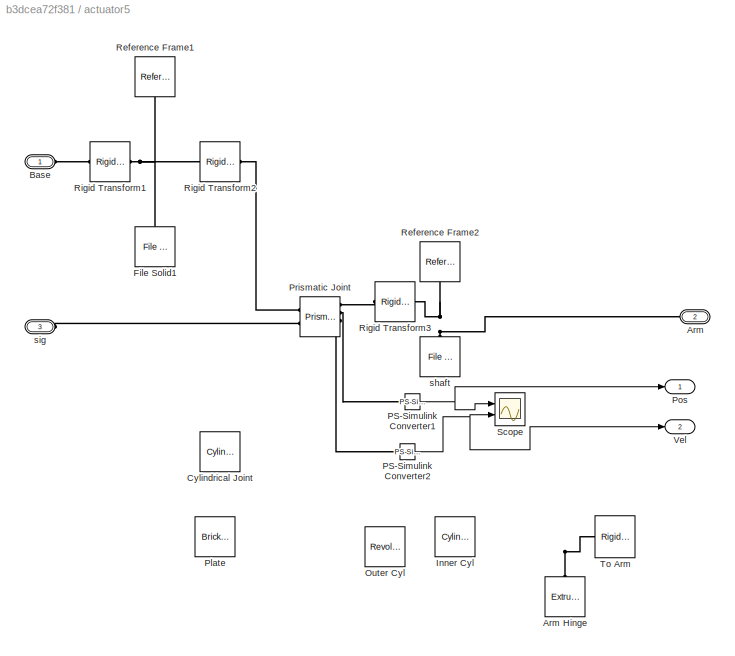
BLOCK [SubSystem] actuator5
  Ports = [0, 2, 0, 0, 0, 2, 1]
  RequestExecContextInheritance = off
BLOCK [PMIOPort] actuator5/Arm
  Port = 2
  Side = Right
BLOCK [Reference] actuator5/Arm Hinge  REF=sm_lib/Body Elements/Extruded Solid
  Commented = on
  Ports = [0, 0, 0, 0, 0, 0, 1]
  SourceBlock = sm_lib/Body Elements/Extruded Solid
  SourceProductBaseCode = MS
  SourceType = Extruded Solid
BLOCK [PMIOPort] actuator5/Base
  Side = Left
BLOCK [Reference] actuator5/Cylindrical Joint  REF=sm_lib/Joints/Cylindrical
Joint
  Commented = on
  Ports = [0, 0, 0, 0, 0, 2, 1]
  SourceBlock = sm_lib/Joints/Cylindrical\nJoint
  SourceProductBaseCode = MS
  SourceType = Cylindrical\nJoint
BLOCK [Reference] actuator5/File Solid1  REF=sm_lib/Body Elements/File Solid
  NameLocation = right
  Ports = [0, 0, 0, 0, 0, 0, 1]
  SourceBlock = sm_lib/Body Elements/File Solid
  SourceProductBaseCode = MS
  SourceType = File Solid
BLOCK [Reference] actuator5/Inner Cyl  REF=sm_lib/Body Elements/Cylindrical Solid
  Commented = on
  Ports = [0, 0, 0, 0, 0, 1, 1]
  SourceBlock = sm_lib/Body Elements/Cylindrical Solid
  SourceProductBaseCode = MS
  SourceType = Cylindrical Solid
BLOCK [Reference] actuator5/Outer Cyl  REF=sm_lib/Body Elements/Revolved Solid
  Commented = on
  Ports = [0, 0, 0, 0, 0, 1, 1]
  SourceBlock = sm_lib/Body Elements/Revolved Solid
  SourceProductBaseCode = MS
  SourceType = Revolved Solid
BLOCK [Reference] actuator5/PS-Simulink Converter1  REF=nesl_utility/PS-Simulink
Converter
  Ports = [0, 1, 0, 0, 0, 1]
  SourceBlock = nesl_utility/PS-Simulink\nConverter
  SourceProductBaseCode = PW,SS
  SourceType = PS-Simulink\nConverter
BLOCK [Reference] actuator5/PS-Simulink Converter2  REF=nesl_utility/PS-Simulink
Converter
  Ports = [0, 1, 0, 0, 0, 1]
  SourceBlock = nesl_utility/PS-Simulink\nConverter
  SourceProductBaseCode = PW,SS
  SourceType = PS-Simulink\nConverter
BLOCK [Reference] actuator5/Plate  REF=sm_lib/Body Elements/Brick Solid
  Commented = on
  Ports = [0, 0, 0, 0, 0, 1, 1]
  SourceBlock = sm_lib/Body Elements/Brick Solid
  SourceProductBaseCode = MS
  SourceType = Brick Solid
BLOCK [Outport] actuator5/Pos
BLOCK [Reference] actuator5/Prismatic Joint  REF=sm_lib/Joints/Prismatic
Joint
  Ports = [0, 0, 0, 0, 0, 2, 4]
  SourceBlock = sm_lib/Joints/Prismatic\nJoint
  SourceProductBaseCode = MS
  SourceType = Prismatic\nJoint
BLOCK [Reference] actuator5/Reference Frame1  REF=sm_lib/Frames and
Transforms/Reference
Frame
  NameLocation = left
  Ports = [0, 0, 0, 0, 0, 0, 1]
  SourceBlock = sm_lib/Frames and\nTransforms/Reference\nFrame
  SourceProductBaseCode = MS
  SourceType = Reference\nFrame
BLOCK [Reference] actuator5/Reference Frame2  REF=sm_lib/Frames and
Transforms/Reference
Frame
  NameLocation = left
  Ports = [0, 0, 0, 0, 0, 0, 1]
  SourceBlock = sm_lib/Frames and\nTransforms/Reference\nFrame
  SourceProductBaseCode = MS
  SourceType = Reference\nFrame
BLOCK [Reference] actuator5/Rigid Transform1  REF=sm_lib/Frames and
Transforms/Rigid
Transform
  NameLocation = top
  Ports = [0, 0, 0, 0, 0, 1, 1]
  SourceBlock = sm_lib/Frames and\nTransforms/Rigid\nTransform
  SourceProductBaseCode = MS
  SourceType = Rigid\nTransform
BLOCK [Reference] actuator5/Rigid Transform2  REF=sm_lib/Frames and
Transforms/Rigid
Transform
  Ports = [0, 0, 0, 0, 0, 1, 1]
  SourceBlock = sm_lib/Frames and\nTransforms/Rigid\nTransform
  SourceProductBaseCode = MS
  SourceType = Rigid\nTransform
BLOCK [Reference] actuator5/Rigid Transform3  REF=sm_lib/Frames and
Transforms/Rigid
Transform
  NameLocation = top
  Ports = [0, 0, 0, 0, 0, 1, 1]
  SourceBlock = sm_lib/Frames and\nTransforms/Rigid\nTransform
  SourceProductBaseCode = MS
  SourceType = Rigid\nTransform
BLOCK [Scope] actuator5/Scope
  Floating = off
  NumInputPorts = 2
  Ports = [2]
  ScopeSpecificationString = Simulink.scopes.TimeScopeBlockCfg('CurrentConfiguration', extmgr.ConfigurationSet(extmgr.Configuration('Core','General UI',true),extmgr.Configuration('Core','Source UI',true),extmgr.Configuration('Sources','WiredSimulink',true,'DataLoggingVariableName','ScopeData1'),extmgr.Configuration('Visuals','Time Domain',true,'SerializedDisplays',{struct('MinYLimReal','-0.06769','MaxYLimReal','0.03697','YLab...<+1442ch>
BLOCK [Reference] actuator5/To Arm  REF=sm_lib/Frames and
Transforms/Rigid
Transform
  Commented = on
  Ports = [0, 0, 0, 0, 0, 1, 1]
  SourceBlock = sm_lib/Frames and\nTransforms/Rigid\nTransform
  SourceProductBaseCode = MS
  SourceType = Rigid\nTransform
BLOCK [Outport] actuator5/Vel
  Port = 2
BLOCK [Reference] actuator5/shaft  REF=sm_lib/Body Elements/File Solid
  NameLocation = right
  Ports = [0, 0, 0, 0, 0, 0, 1]
  SourceBlock = sm_lib/Body Elements/File Solid
  SourceProductBaseCode = MS
  SourceType = File Solid
BLOCK [PMIOPort] actuator5/sig
  Port = 3
  Side = Left
BLOCK [SubSystem] actuator6
  Ports = [0, 2, 0, 0, 0, 2, 1]
  RequestExecContextInheritance = off
BLOCK [PMIOPort] actuator6/Arm
  Port = 2
  Side = Right
BLOCK [Reference] actuator6/Arm Hinge  REF=sm_lib/Body Elements/Extruded Solid
  Commented = on
  Ports = [0, 0, 0, 0, 0, 0, 1]
  SourceBlock = sm_lib/Body Elements/Extruded Solid
  SourceProductBaseCode = MS
  SourceType = Extruded Solid
BLOCK [PMIOPort] actuator6/Base
  Side = Left
BLOCK [Reference] actuator6/Cylindrical Joint  REF=sm_lib/Joints/Cylindrical
Joint
  Commented = on
  Ports = [0, 0, 0, 0, 0, 2, 1]
  SourceBlock = sm_lib/Joints/Cylindrical\nJoint
  SourceProductBaseCode = MS
  SourceType = Cylindrical\nJoint
BLOCK [Reference] actuator6/File Solid1  REF=sm_lib/Body Elements/File Solid
  NameLocation = right
  Ports = [0, 0, 0, 0, 0, 0, 1]
  SourceBlock = sm_lib/Body Elements/File Solid
  SourceProductBaseCode = MS
  SourceType = File Solid
BLOCK [Reference] actuator6/Inner Cyl  REF=sm_lib/Body Elements/Cylindrical Solid
  Commented = on
  Ports = [0, 0, 0, 0, 0, 1, 1]
  SourceBlock = sm_lib/Body Elements/Cylindrical Solid
  SourceProductBaseCode = MS
  SourceType = Cylindrical Solid
BLOCK [Reference] actuator6/Outer Cyl  REF=sm_lib/Body Elements/Revolved Solid
  Commented = on
  Ports = [0, 0, 0, 0, 0, 1, 1]
  SourceBlock = sm_lib/Body Elements/Revolved Solid
  SourceProductBaseCode = MS
  SourceType = Revolved Solid
BLOCK [Reference] actuator6/PS-Simulink Converter1  REF=nesl_utility/PS-Simulink
Converter
  Ports = [0, 1, 0, 0, 0, 1]
  SourceBlock = nesl_utility/PS-Simulink\nConverter
  SourceProductBaseCode = PW,SS
  SourceType = PS-Simulink\nConverter
BLOCK [Reference] actuator6/PS-Simulink Converter2  REF=nesl_utility/PS-Simulink
Converter
  Ports = [0, 1, 0, 0, 0, 1]
  SourceBlock = nesl_utility/PS-Simulink\nConverter
  SourceProductBaseCode = PW,SS
  SourceType = PS-Simulink\nConverter
BLOCK [Reference] actuator6/Plate  REF=sm_lib/Body Elements/Brick Solid
  Commented = on
  Ports = [0, 0, 0, 0, 0, 1, 1]
  SourceBlock = sm_lib/Body Elements/Brick Solid
  SourceProductBaseCode = MS
  SourceType = Brick Solid
BLOCK [Outport] actuator6/Pos
BLOCK [Reference] actuator6/Prismatic Joint  REF=sm_lib/Joints/Prismatic
Joint
  Ports = [0, 0, 0, 0, 0, 2, 4]
  SourceBlock = sm_lib/Joints/Prismatic\nJoint
  SourceProductBaseCode = MS
  SourceType = Prismatic\nJoint
BLOCK [Reference] actuator6/Reference Frame1  REF=sm_lib/Frames and
Transforms/Reference
Frame
  NameLocation = left
  Ports = [0, 0, 0, 0, 0, 0, 1]
  SourceBlock = sm_lib/Frames and\nTransforms/Reference\nFrame
  SourceProductBaseCode = MS
  SourceType = Reference\nFrame
BLOCK [Reference] actuator6/Reference Frame2  REF=sm_lib/Frames and
Transforms/Reference
Frame
  NameLocation = left
  Ports = [0, 0, 0, 0, 0, 0, 1]
  SourceBlock = sm_lib/Frames and\nTransforms/Reference\nFrame
  SourceProductBaseCode = MS
  SourceType = Reference\nFrame
BLOCK [Reference] actuator6/Rigid Transform1  REF=sm_lib/Frames and
Transforms/Rigid
Transform
  NameLocation = top
  Ports = [0, 0, 0, 0, 0, 1, 1]
  SourceBlock = sm_lib/Frames and\nTransforms/Rigid\nTransform
  SourceProductBaseCode = MS
  SourceType = Rigid\nTransform
BLOCK [Reference] actuator6/Rigid Transform2  REF=sm_lib/Frames and
Transforms/Rigid
Transform
  Ports = [0, 0, 0, 0, 0, 1, 1]
  SourceBlock = sm_lib/Frames and\nTransforms/Rigid\nTransform
  SourceProductBaseCode = MS
  SourceType = Rigid\nTransform
BLOCK [Reference] actuator6/Rigid Transform3  REF=sm_lib/Frames and
Transforms/Rigid
Transform
  NameLocation = top
  Ports = [0, 0, 0, 0, 0, 1, 1]
  SourceBlock = sm_lib/Frames and\nTransforms/Rigid\nTransform
  SourceProductBaseCode = MS
  SourceType = Rigid\nTransform
BLOCK [Scope] actuator6/Scope
  Floating = off
  NumInputPorts = 2
  Ports = [2]
  ScopeSpecificationString = Simulink.scopes.TimeScopeBlockCfg('CurrentConfiguration', extmgr.ConfigurationSet(extmgr.Configuration('Core','General UI',true),extmgr.Configuration('Core','Source UI',true),extmgr.Configuration('Sources','WiredSimulink',true,'DataLoggingVariableName','ScopeData1'),extmgr.Configuration('Visuals','Time Domain',true,'SerializedDisplays',{struct('MinYLimReal','-0.06025','MaxYLimReal','0.00778','YLab...<+1406ch>
BLOCK [Reference] actuator6/To Arm  REF=sm_lib/Frames and
Transforms/Rigid
Transform
  Commented = on
  Ports = [0, 0, 0, 0, 0, 1, 1]
  SourceBlock = sm_lib/Frames and\nTransforms/Rigid\nTransform
  SourceProductBaseCode = MS
  SourceType = Rigid\nTransform
BLOCK [Outport] actuator6/Vel
  Port = 2
BLOCK [Reference] actuator6/shaft  REF=sm_lib/Body Elements/File Solid
  NameLocation = right
  Ports = [0, 0, 0, 0, 0, 0, 1]
  SourceBlock = sm_lib/Body Elements/File Solid
  SourceProductBaseCode = MS
  SourceType = File Solid
BLOCK [PMIOPort] actuator6/sig
  Port = 3
  Side = Left
BLOCK [Gain] dt_gain
  Gain = 0.0005
  NameLocation = right
BLOCK [Reference] rotate contact forces2  REF=sm_lib/Frames and
Transforms/Rigid
Transform
  NameLocation = top
  Ports = [0, 0, 0, 0, 0, 1, 1]
  SourceBlock = sm_lib/Frames and\nTransforms/Rigid\nTransform
  SourceProductBaseCode = MS
  SourceType = Rigid\nTransform
BLOCK [Reference] rotate contact forces3  REF=sm_lib/Frames and
Transforms/Rigid
Transform
  NameLocation = top
  Ports = [0, 0, 0, 0, 0, 1, 1]
  SourceBlock = sm_lib/Frames and\nTransforms/Rigid\nTransform
  SourceProductBaseCode = MS
  SourceType = Rigid\nTransform
BLOCK [Reference] rotate for joint 13  REF=sm_lib/Frames and
Transforms/Rigid
Transform
  NameLocation = top
  Ports = [0, 0, 0, 0, 0, 1, 1]
  SourceBlock = sm_lib/Frames and\nTransforms/Rigid\nTransform
  SourceProductBaseCode = MS
  SourceType = Rigid\nTransform
BLOCK [Reference] rotate for joint 14  REF=sm_lib/Frames and
Transforms/Rigid
Transform
  Ports = [0, 0, 0, 0, 0, 1, 1]
  SourceBlock = sm_lib/Frames and\nTransforms/Rigid\nTransform
  SourceProductBaseCode = MS
  SourceType = Rigid\nTransform
BLOCK [Reference] rotate for joint 16  REF=sm_lib/Frames and
Transforms/Rigid
Transform
  NameLocation = top
  Ports = [0, 0, 0, 0, 0, 1, 1]
  SourceBlock = sm_lib/Frames and\nTransforms/Rigid\nTransform
  SourceProductBaseCode = MS
  SourceType = Rigid\nTransform
BLOCK [Reference] rotate for joint 17  REF=sm_lib/Frames and
Transforms/Rigid
Transform
  Ports = [0, 0, 0, 0, 0, 1, 1]
  SourceBlock = sm_lib/Frames and\nTransforms/Rigid\nTransform
  SourceProductBaseCode = MS
  SourceType = Rigid\nTransform
BLOCK [Reference] rotate for joint 18  REF=sm_lib/Frames and
Transforms/Rigid
Transform
  NameLocation = top
  Ports = [0, 0, 0, 0, 0, 1, 1]
  SourceBlock = sm_lib/Frames and\nTransforms/Rigid\nTransform
  SourceProductBaseCode = MS
  SourceType = Rigid\nTransform
BLOCK [Reference] rotate for joint 19  REF=sm_lib/Frames and
Transforms/Rigid
Transform
  NameLocation = top
  Ports = [0, 0, 0, 0, 0, 1, 1]
  SourceBlock = sm_lib/Frames and\nTransforms/Rigid\nTransform
  SourceProductBaseCode = MS
  SourceType = Rigid\nTransform
BLOCK [Reference] rotate for joint 9  REF=sm_lib/Frames and
Transforms/Rigid
Transform
  Ports = [0, 0, 0, 0, 0, 1, 1]
  SourceBlock = sm_lib/Frames and\nTransforms/Rigid\nTransform
  SourceProductBaseCode = MS
  SourceType = Rigid\nTransform
BLOCK [Reference] z axis coincident5  REF=sm_lib/Joints/Revolute Joint
  Ports = [0, 0, 0, 0, 0, 1, 3]
  SourceBlock = sm_lib/Joints/Revolute Joint
  SourceProductBaseCode = MS
  SourceType = Revolute Joint
BLOCK [Reference] z axis coincident6  REF=sm_lib/Joints/Revolute Joint
  Ports = [0, 0, 0, 0, 0, 1, 3]
  SourceBlock = sm_lib/Joints/Revolute Joint
  SourceProductBaseCode = MS
  SourceType = Revolute Joint
LINE Bus Creator1:1 -> Bus Selector3:1
NET Bus Creator2:1 -> Bus Selector2:1, Bus Selector5:1
LINE Bus Creator3:1 -> Bus Selector1:1
LINE Bus Creator4:1 -> Bus Selector7:1
LINE Bus Creator:1 -> Bus Selector4:1
LINE Bus Selector1:1 -> Gain:1
LINE Bus Selector1:2 -> Gain1:1
LINE Bus Selector2:1 -> MATLAB Function3:1
LINE Bus Selector2:2 -> MATLAB Function3:2
NET Bus Selector3:1 -> MATLAB Function2:1, dt_gain:1
LINE Bus Selector3:2 -> Sum4:2
LINE Bus Selector4:1 -> MATLAB Function1:10
NET Bus Selector4:2 -> Bus Creator2:1, MATLAB Function1:4
LINE Bus Selector4:3 -> MATLAB Function1:11
NET Bus Selector4:4 -> Bus Creator2:2, MATLAB Function1:5
LINE Bus Selector5:1 -> MATLAB Function:1
LINE Bus Selector5:2 -> MATLAB Function:2
LINE Bus Selector7:1 -> MATLAB Function2:4
LINE Bus Selector7:2 -> MATLAB Function1:9
LINE Bus Selector:1 -> Contact Force:1
LINE Circle to Finite Line:1 -> Bus Selector:1
LINE Data Store Read11:1 -> MATLAB Function1:12
LINE Data Store Read12:1 -> MATLAB Function2:2
LINE Data Store Read13:1 -> MATLAB Function2:3
LINE Data Store Read14:1 -> MATLAB Function1:1
LINE Data Store Read17:1 -> MATLAB Function1:14
LINE Data Store Read1:1 -> MATLAB Function1:13
LINE Data Store Read3:1 -> MATLAB Function:3
LINE Data Store Read4:1 -> Sum9:1
LINE Data Store Read5:1 -> Sum10:1
LINE Data Store Read6:1 -> MATLAB Function2:5
LINE Data Store Read7:1 -> MATLAB Function2:6
LINE Data Store Read8:1 -> MATLAB Function1:6
LINE Data Store Read9:1 -> MATLAB Function1:7
LINE Delay1:1 -> Sum10:2
LINE Delay:1 -> Sum9:2
LINE Demux1:1 -> Display3:1
LINE Demux1:2 -> Display2:1
LINE Demux:1 -> Display1:1
LINE Demux:2 -> Display:1
LINE Gain1:1 -> Scope6:2
LINE Gain:1 -> Scope6:1
LINE Initial guess 2:1 -> Mux1:2
NET Interpreted MATLAB Function1:1 -> Data Store Write12:1, Demux1:1, MATLAB Function3:4
NET Interpreted MATLAB Function:1 -> Data Store Write11:1, Demux:1, MATLAB Function3:3
LINE MATLAB Function1:1 -> Data Store Write13:1
NET MATLAB Function1:2 -> Bus Creator3:1, Data Store Write1:1, Scope3:1
NET MATLAB Function1:3 -> Bus Creator3:2, Data Store Write2:1, Scope3:2
NET MATLAB Function1:4 -> Data Store Write3:1, Scope4:1
NET MATLAB Function1:5 -> Data Store Write4:1, Scope4:2
NET MATLAB Function1:6 -> Data Store Write8:1, Scope:1
NET MATLAB Function1:7 -> Data Store Write9:1, Scope:2
NET MATLAB Function2:1 -> Data Store Write10:1, Scope2:2
NET MATLAB Function3:1 -> Data Store Write5:1, Scope1:1
NET MATLAB Function3:2 -> Data Store Write6:1, Scope1:2
NET MATLAB Function3:3 -> Data Store Write7:1, Scope1:3
LINE MATLAB Function:1 -> Mux1:1
NET Mux1:1 -> Interpreted MATLAB Function1:1, Interpreted MATLAB Function:1
LINE PID Controller1:1 -> Simulink-PSConverter5:1
LINE PID Controller6:1 -> Simulink-PSConverter6:1
NET PS-Simulink Converter1:1 -> Bus Creator4:1, Scope5:1
NET PS-Simulink Converter2:1 -> Bus Creator4:2, Scope5:2
NET PS-Simulink Converter3:1 -> Bus Creator4:3, Scope5:3
LINE Quantizer1:1 -> Discrete Derivative1:1
LINE Sensing/Mux:1 -> Sensing/Terminator:1
LINE Sensing/PS-Simulink Converter1:1 -> Sensing/Mux:2
NET Sensing/PS-Simulink Converter2:1 -> Sensing/Mux:1, Sensing/x:1
LINE Sensing/PS-Simulink Converter3:1 -> Sensing/vx:1
NET Sensing/PS-Simulink Converter:1 -> Sensing/Mux:3, Sensing/z:1
LINE Sensing:1 -> Ball Height:1
NET Sensing:2 -> Ball Height:2, Bus Creator1:2
NET Sensing:3 -> Ball Height:3, Bus Creator1:1
LINE Signal Generator:1 -> Relay:1
LINE Sine Wave1:1 -> MATLAB Function1:3
LINE Sine Wave:1 -> MATLAB Function1:2
LINE Sum10:1 -> PID Controller6:1
NET Sum4:1 -> Data Store Write:1, MATLAB Function1:8, Scope2:1
LINE Sum9:1 -> PID Controller1:1
NET actuator5/PS-Simulink Converter1:1 -> actuator5/Pos:1, actuator5/Scope:1
NET actuator5/PS-Simulink Converter2:1 -> actuator5/Scope:2, actuator5/Vel:1
NET actuator5:1 -> Bus Creator:2, Sum9:3
LINE actuator5:2 -> Bus Creator:1
NET actuator6/PS-Simulink Converter1:1 -> actuator6/Pos:1, actuator6/Scope:1
NET actuator6/PS-Simulink Converter2:1 -> actuator6/Scope:2, actuator6/Vel:1
NET actuator6:1 -> Bus Creator:4, Sum10:3
LINE actuator6:2 -> Bus Creator:3
LINE dt_gain:1 -> Sum4:1
PNET net1: Circle to Finite Line:LConn1 -- Disk:LConn1 -- Planar Joint3:RConn1 -- Sensing:LConn1
PNET net2: Circle to Finite Line:RConn1 -- Planar Joint3:LConn1 -- rotate for joint 16:LConn1
PLINE Floor4/Ffb:RConn1 -- Floor4/Floor XForm2:RConn1
PLINE Floor4/Ffr:RConn1 -- Floor4/Floor XForm1:RConn1
PLINE Floor4/Ffw:RConn1 -- Floor4/Rigid Transform:RConn1
PNET net3: Floor4/File Solid:RConn1 -- Floor4/Floor XForm3:LConn1 -- Floor4/Floor XForm:LConn1 -- Floor4/Reference Frame:RConn1 -- Floor4/Rigid Transform:LConn1
PLINE Floor4/Floor XForm1:LConn1 -- Floor4/Floor XForm3:RConn1
PLINE Floor4/Floor XForm2:LConn1 -- Floor4/Floor XForm:RConn1
PNET net4: Floor4:LConn1 -- Mechanism Configuration2:RConn1 -- Solver Configuration2:RConn1 -- Transform Sensor2:LConn1 -- World Frame2:RConn1
PLINE Floor4:RConn1 -- Weld Joint11:LConn1
PLINE Floor4:RConn2 -- rotate for joint 14:LConn1
PLINE Floor5/Ffb:RConn1 -- Floor5/Floor XForm2:RConn1
PLINE Floor5/Ffr:RConn1 -- Floor5/Floor XForm1:RConn1
PLINE Floor5/Ffw:RConn1 -- Floor5/Rigid Transform:RConn1
PNET net5: Floor5/File Solid:RConn1 -- Floor5/Floor XForm1:LConn1 -- Floor5/Floor XForm2:LConn1 -- Floor5/Reference Frame:RConn1 -- Floor5/Rigid Transform:LConn1
PLINE Floor5:LConn1 -- rotate contact forces2:RConn1
PLINE Floor5:RConn1 -- rotate for joint 18:LConn1
PLINE Floor5:RConn2 -- rotate for joint 19:RConn1
PLINE PS-Simulink Converter1:LConn1 -- Transform Sensor1:RConn2
PLINE PS-Simulink Converter2:LConn1 -- Transform Sensor:RConn2
PLINE PS-Simulink Converter3:LConn1 -- Transform Sensor2:RConn2
PLINE Revolute Joint3:LConn1 -- rotate for joint 14:RConn1
PNET net6: Revolute Joint3:RConn1 -- Transform Sensor2:RConn1 -- rotate for joint 13:RConn1
PLINE Sensing/F:RConn1 -- Sensing/Transform Sensor:RConn1
PLINE Sensing/PS-Simulink Converter1:LConn1 -- Sensing/Transform Sensor:RConn3
PLINE Sensing/PS-Simulink Converter2:LConn1 -- Sensing/Transform Sensor:RConn2
PLINE Sensing/PS-Simulink Converter3:LConn1 -- Sensing/Transform Sensor:RConn5
PLINE Sensing/PS-Simulink Converter:LConn1 -- Sensing/Transform Sensor:RConn4
PLINE Sensing/Transform Sensor:LConn1 -- Sensing/World Frame:RConn1
PLINE Simulink-PSConverter5:RConn1 -- actuator5:LConn2
PLINE Simulink-PSConverter6:RConn1 -- actuator6:LConn2
PNET net7: To Arm Hinge1:LConn1 -- Transform Sensor:LConn1 -- actuator6:RConn1
PLINE To Arm Hinge1:RConn1 -- rotate for joint 17:LConn1
PNET net8: To Arm Hinge:LConn1 -- Transform Sensor1:LConn1 -- actuator5:RConn1
PLINE To Arm Hinge:RConn1 -- rotate for joint 9:LConn1
PNET net9: Transform Sensor1:RConn1 -- rotate for joint 18:RConn1 -- z axis coincident5:RConn1
PNET net10: Transform Sensor:RConn1 -- rotate for joint 19:LConn1 -- z axis coincident6:RConn1
PLINE Weld Joint11:RConn1 -- actuator5:LConn1
PLINE actuator5/Arm Hinge:RConn1 -- actuator5/To Arm:LConn1
PNET net11: actuator5/Arm:RConn1 -- actuator5/Reference Frame2:RConn1 -- actuator5/Rigid Transform3:LConn1 -- actuator5/shaft:RConn1
PLINE actuator5/Base:RConn1 -- actuator5/Rigid Transform1:RConn1
PNET net12: actuator5/File Solid1:RConn1 -- actuator5/Reference Frame1:RConn1 -- actuator5/Rigid Transform1:LConn1 -- actuator5/Rigid Transform2:LConn1
PLINE actuator5/PS-Simulink Converter1:LConn1 -- actuator5/Prismatic Joint:RConn2
PLINE actuator5/PS-Simulink Converter2:LConn1 -- actuator5/Prismatic Joint:RConn3
PLINE actuator5/Prismatic Joint:LConn1 -- actuator5/Rigid Transform2:RConn1
PLINE actuator5/Prismatic Joint:LConn2 -- actuator5/sig:RConn1
PLINE actuator5/Prismatic Joint:RConn1 -- actuator5/Rigid Transform3:RConn1
PLINE actuator6/Arm Hinge:RConn1 -- actuator6/To Arm:LConn1
PNET net13: actuator6/Arm:RConn1 -- actuator6/Reference Frame2:RConn1 -- actuator6/Rigid Transform3:LConn1 -- actuator6/shaft:RConn1
PLINE actuator6/Base:RConn1 -- actuator6/Rigid Transform1:RConn1
PNET net14: actuator6/File Solid1:RConn1 -- actuator6/Reference Frame1:RConn1 -- actuator6/Rigid Transform1:LConn1 -- actuator6/Rigid Transform2:LConn1
PLINE actuator6/PS-Simulink Converter1:LConn1 -- actuator6/Prismatic Joint:RConn2
PLINE actuator6/PS-Simulink Converter2:LConn1 -- actuator6/Prismatic Joint:RConn3
PLINE actuator6/Prismatic Joint:LConn1 -- actuator6/Rigid Transform2:RConn1
PLINE actuator6/Prismatic Joint:LConn2 -- actuator6/sig:RConn1
PLINE actuator6/Prismatic Joint:RConn1 -- actuator6/Rigid Transform3:RConn1
PLINE actuator6:LConn1 -- rotate for joint 13:LConn1
PLINE rotate contact forces2:LConn1 -- rotate contact forces3:RConn1
PLINE rotate contact forces3:LConn1 -- rotate for joint 16:RConn1
PLINE rotate for joint 17:RConn1 -- z axis coincident6:LConn1
PLINE rotate for joint 9:RConn1 -- z axis coincident5:LConn1
note: NET lines group one-source signal fan-out (src -> all destinations, sorted); 1:1 wires keep LINE; PNET lines group multi-terminal physical nets as a canonical sorted terminal list (undirected conserving connections); 2-terminal nets keep the pairwise PLINE form
CHART MATLAB Function1 states=1 transitions=1
  STATE_LABEL 'eML_blk_kernel()'
  STATE_LABEL 'SCRIPT:\nfunction [a,fvel,lvel,ld,v,y1,y2] = find_yvels(a,u1,u2,xy1,xy2,y1,y2,bh,angley3,fvel,lvel,v,ld,dt)\n            %% initial y1 y2 impulses\n            %y1 y2 are t-1 values, xy1, xy2 are t(current values)\n            \n            %a mimics t, time counter\n            if a ==0\n                y1=u1;\n                y2=u2;\n                a=1;\n            elseif a==1\n                y1=y1;\n   ...<+3168ch>'
CHART MATLAB Function states=1 transitions=1
  STATE_LABEL 'eML_blk_kernel()'
  STATE_LABEL 'SCRIPT:\nfunction A = concat_A(y1,y2,len)\n A=[len y1 y2];\nend\n'
CHART MATLAB Function2 states=1 transitions=1
  STATE_LABEL 'eML_blk_kernel()'
  STATE_LABEL 'SCRIPT:\nfunction cv = fcn(cv,dt,g,angley1,y1,y2)\n\n            a_mult_t=dt*g*cos(angley1);\n        %\n            if y1>y2\n            cv = cv+a_mult_t*sin(angley1);\n        else %y2>y1\n            cv = cv+a_mult_t*cos(angley1-pi/2);\n        end\n            %}\n         %cv = cv+a_mult_t*sin(angley1);\nend\n'
CHART MATLAB Function3 states=1 transitions=1
  STATE_LABEL 'eML_blk_kernel()'
  STATE_LABEL 'SCRIPT:\n    function [angley1,angley2,angley3] = find_angleys(y1,y2,x1,x2)\n\n\n    if y1>y2\n        %use value set 1\n        angley1=x1(1)+pi/2;  %mtrig manipulation to put in right quadrant\n        angley2=0.5*pi-angley1; %internal angles of a right-angle-triangle\n        angley3=x1(2);\n    else %y2>=y1\n        %use value set 2\n        angley1=pi/2-x2(1);  %mtrig manipulation to put in right quadra...<+135ch>'
CHART  states=0 transitions=0
CHART  states=0 transitions=0
CHART  states=0 transitions=0
CHART  states=0 transitions=0
